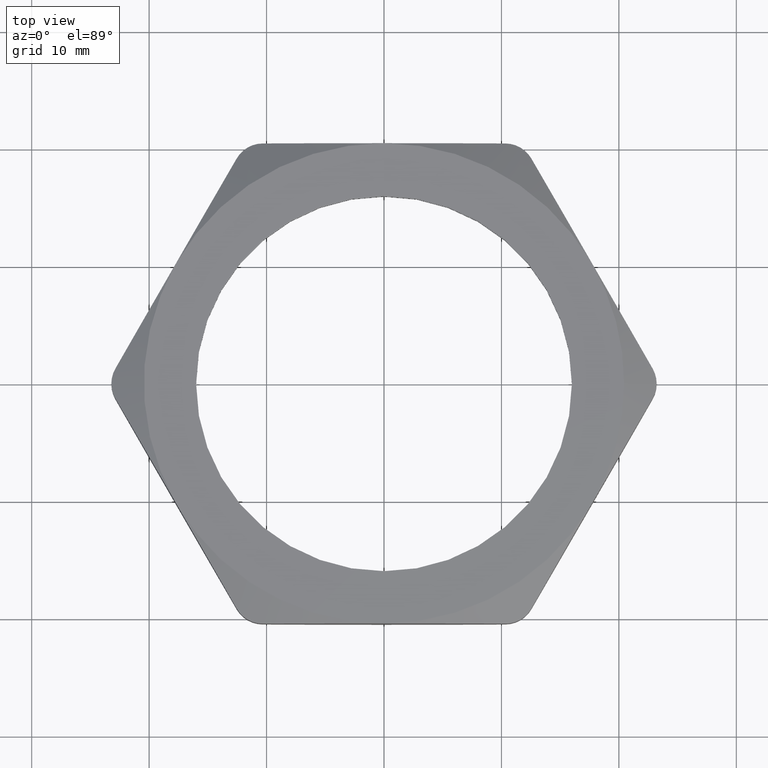
[diagram: clean part render]
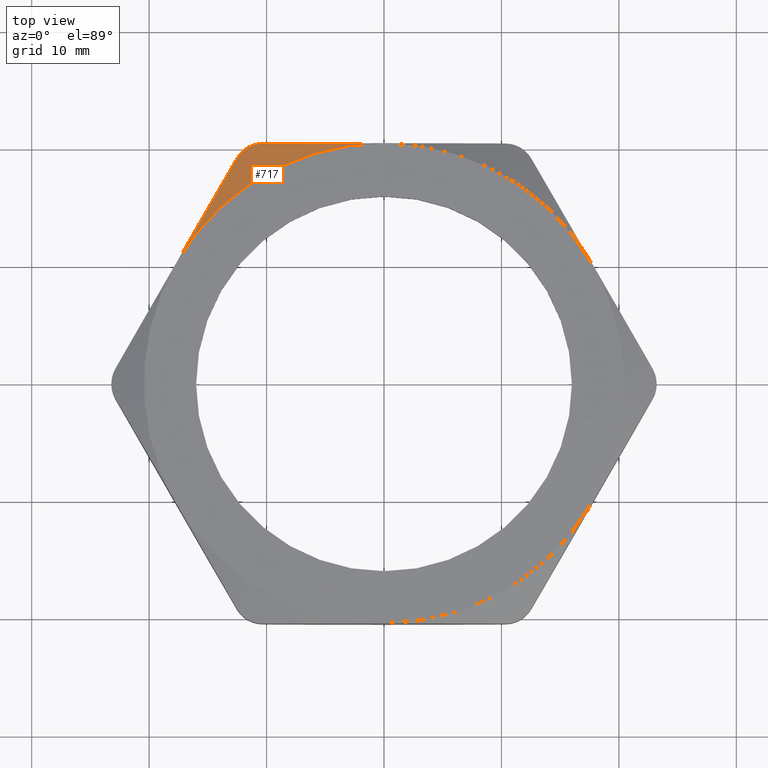
[diagram: same view with one face highlighted and labeled with its STEP entity id]
A machine part, top view. The second image highlights one B-rep face of the part: STEP entity #717.
In plain terms, the highlighted conical surface has half-angle 60 deg.
Its self-contained STEP definition (entity closure, byte-faithful):
#382 = EDGE_CURVE ( 'NONE', #383, #542, #2262, .T. ) ;
#383 = VERTEX_POINT ( 'NONE', #2304 ) ;
#542 = VERTEX_POINT ( 'NONE', #1497 ) ;
#673 = EDGE_CURVE ( 'NONE', #2748, #542, #1725, .T. ) ;
#696 = EDGE_LOOP ( 'NONE', ( #719, #738, #728, #734 ) ) ;
#717 = ADVANCED_FACE ( 'NONE', ( #1799 ), #1798, .T. ) ;
#719 = ORIENTED_EDGE ( 'NONE', *, *, #2745, .T. ) ;
#728 = ORIENTED_EDGE ( 'NONE', *, *, #382, .T. ) ;
#734 = ORIENTED_EDGE ( 'NONE', *, *, #673, .F. ) ;
#737 = EDGE_CURVE ( 'NONE', #2743, #383, #1829, .T. ) ;
#738 = ORIENTED_EDGE ( 'NONE', *, *, #737, .T. ) ;
#1224 = CARTESIAN_POINT ( 'NONE',  ( -0.4493392765316848200, 0.7960351680652513200, 0.2170358288039215500 ) ) ;
#1228 = CARTESIAN_POINT ( 'NONE',  ( -0.4411208758462645300, 0.7994176478487884400, 0.2176415408248847400 ) ) ;
#1497 = CARTESIAN_POINT ( 'NONE',  ( -0.6971504500464734700, 0.4025000000000001400, 0.2800000000000000300 ) ) ;
#1589 = CARTESIAN_POINT ( 'NONE',  ( -0.4645762988425720700, 0.7872554515380395500, 0.2170280884318410400 ) ) ;
#1682 = CARTESIAN_POINT ( 'NONE',  ( 0.0000000000000000000, 0.0000000000000000000, 0.2800000000000000300 ) ) ;
#1722 = DIRECTION ( 'NONE',  ( 1.000000000000000000, 0.0000000000000000000, 0.0000000000000000000 ) ) ;
#1723 = DIRECTION ( 'NONE',  ( 0.0000000000000000000, 0.0000000000000000000, 1.000000000000000000 ) ) ;
#1724 = AXIS2_PLACEMENT_3D ( 'NONE', #1682, #1723, #1722 ) ;
#1725 = CIRCLE ( 'NONE', #1724, 0.8050000000000000500 ) ;
#1793 = DIRECTION ( 'NONE',  ( 1.000000000000000000, 0.0000000000000000000, 0.0000000000000000000 ) ) ;
#1794 = DIRECTION ( 'NONE',  ( 0.0000000000000000000, 0.0000000000000000000, -1.000000000000000000 ) ) ;
#1795 = CARTESIAN_POINT ( 'NONE',  ( 0.0000000000000000000, 0.0000000000000000000, 0.2800000000000000300 ) ) ;
#1796 = AXIS2_PLACEMENT_3D ( 'NONE', #1795, #1794, #1793 ) ;
#1798 = CONICAL_SURFACE ( 'NONE', #1796, 0.8050000000000000500, 1.047197551196600100 ) ;
#1799 = FACE_OUTER_BOUND ( 'NONE', #696, .T. ) ;
#1823 = CARTESIAN_POINT ( 'NONE',  ( -0.4241845384990629600, 0.8039067042452384700, 0.2200048133248828400 ) ) ;
#1824 = CARTESIAN_POINT ( 'NONE',  ( -0.4156420888985796800, 0.8049999999999998300, 0.2217232127177907700 ) ) ;
#1825 = CARTESIAN_POINT ( 'NONE',  ( -0.4070319397786915600, 0.8050000000000000500, 0.2239663010554721900 ) ) ;
#1829 = B_SPLINE_CURVE_WITH_KNOTS ( 'NONE', 3,
 ( #1825, #1824, #1823, #1228, #1224, #1589, #2000, #1999, #2115, #2324 ),
 .UNSPECIFIED., .F., .F.,
 ( 4, 2, 2, 2, 4 ),
 ( 6.614735136348810200E-017, 0.0006689416865004965800, 0.001337883373000927000, 0.002006825059501357700, 0.002675766746001788100 ),
 .UNSPECIFIED. ) ;
#1999 = CARTESIAN_POINT ( 'NONE',  ( -0.4839825357055612100, 0.7694546523657023200, 0.2199724499956557900 ) ) ;
#2000 = CARTESIAN_POINT ( 'NONE',  ( -0.4716862299610650700, 0.7817829355136770600, 0.2176361305789829000 ) ) ;
#2115 = CARTESIAN_POINT ( 'NONE',  ( -0.4893280908863836300, 0.7624588850141028600, 0.2217225277093532200 ) ) ;
#2262 = B_SPLINE_CURVE_WITH_KNOTS ( 'NONE', 3,
 ( #2303, #2302, #2301, #2300, #2299, #2298 ),
 .UNSPECIFIED., .F., .F.,
 ( 4, 2, 4 ),
 ( 0.001509108341423811600, 0.006727077222619349700, 0.01194504610381488800 ),
 .UNSPECIFIED. ) ;
#2298 = CARTESIAN_POINT ( 'NONE',  ( -0.6971504500464734700, 0.4025000000000001400, 0.2800000000000000300 ) ) ;
#2299 = CARTESIAN_POINT ( 'NONE',  ( -0.6625603847151301200, 0.4624117505910128000, 0.2800000000000001400 ) ) ;
#2300 = CARTESIAN_POINT ( 'NONE',  ( -0.6283448200907454400, 0.5216748469301035800, 0.2747856712458403600 ) ) ;
#2301 = CARTESIAN_POINT ( 'NONE',  ( -0.5605546474726129700, 0.6390908701585736900, 0.2554327085834740000 ) ) ;
#2302 = CARTESIAN_POINT ( 'NONE',  ( -0.5269768284203568700, 0.6972493587644345000, 0.2413387835754068300 ) ) ;
#2303 = CARTESIAN_POINT ( 'NONE',  ( -0.4936344801571300700, 0.7550000000000000000, 0.2239663010554733000 ) ) ;
#2304 = CARTESIAN_POINT ( 'NONE',  ( -0.4936344801571300700, 0.7550000000000000000, 0.2239663010554733000 ) ) ;
#2324 = CARTESIAN_POINT ( 'NONE',  ( -0.4936344801571300700, 0.7550000000000000000, 0.2239663010554733000 ) ) ;
#2624 = CARTESIAN_POINT ( 'NONE',  ( 0.0000000000000000000, 0.8050000000000000500, 0.2800000000000000300 ) ) ;
#2631 = CARTESIAN_POINT ( 'NONE',  ( -0.4070319397786915600, 0.8050000000000000500, 0.2239663010554721900 ) ) ;
#2632 = CARTESIAN_POINT ( 'NONE',  ( -0.3736440728886260600, 0.8050000000000000500, 0.2326644006816052100 ) ) ;
#2633 = CARTESIAN_POINT ( 'NONE',  ( -0.3399264071758856300, 0.8050000000000001600, 0.2405906695084204200 ) ) ;
#2634 = CARTESIAN_POINT ( 'NONE',  ( -0.2724720025322147100, 0.8050000000000000500, 0.2544363823599889400 ) ) ;
#2635 = CARTESIAN_POINT ( 'NONE',  ( -0.2386573306271485000, 0.8050000000000000500, 0.2603766092975308700 ) ) ;
#2636 = CARTESIAN_POINT ( 'NONE',  ( -0.1369158576210306200, 0.8050000000000001600, 0.2748556678598195200 ) ) ;
#2637 = CARTESIAN_POINT ( 'NONE',  ( -0.06868689231796373800, 0.8049999999999998300, 0.2799999999999999700 ) ) ;
#2638 = CARTESIAN_POINT ( 'NONE',  ( 0.0000000000000000000, 0.8050000000000000500, 0.2800000000000000300 ) ) ;
#2639 = B_SPLINE_CURVE_WITH_KNOTS ( 'NONE', 3,
 ( #2638, #2637, #2636, #2635, #2634, #2633, #2632, #2631 ),
 .UNSPECIFIED., .F., .F.,
 ( 4, 2, 2, 4 ),
 ( 0.06753682114315524800, 0.07275696039405799000, 0.07536703001950935400, 0.07797709964496073200 ),
 .UNSPECIFIED. ) ;
#2643 = CARTESIAN_POINT ( 'NONE',  ( -0.4070319397786915600, 0.8050000000000000500, 0.2239663010554721900 ) ) ;
#2743 = VERTEX_POINT ( 'NONE', #2643 ) ;
#2745 = EDGE_CURVE ( 'NONE', #2748, #2743, #2639, .T. ) ;
#2748 = VERTEX_POINT ( 'NONE', #2624 ) ;